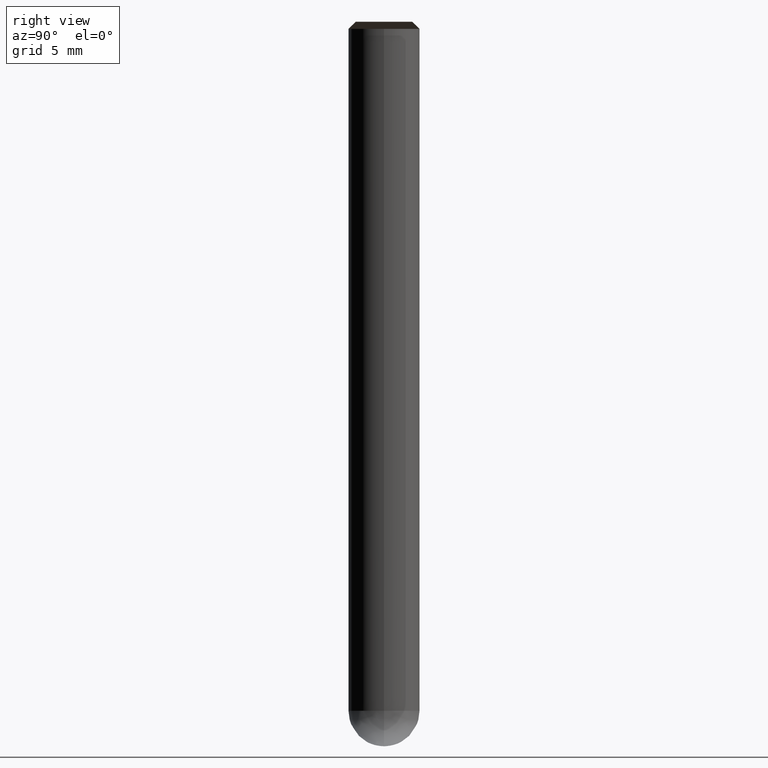
[diagram: clean part render]
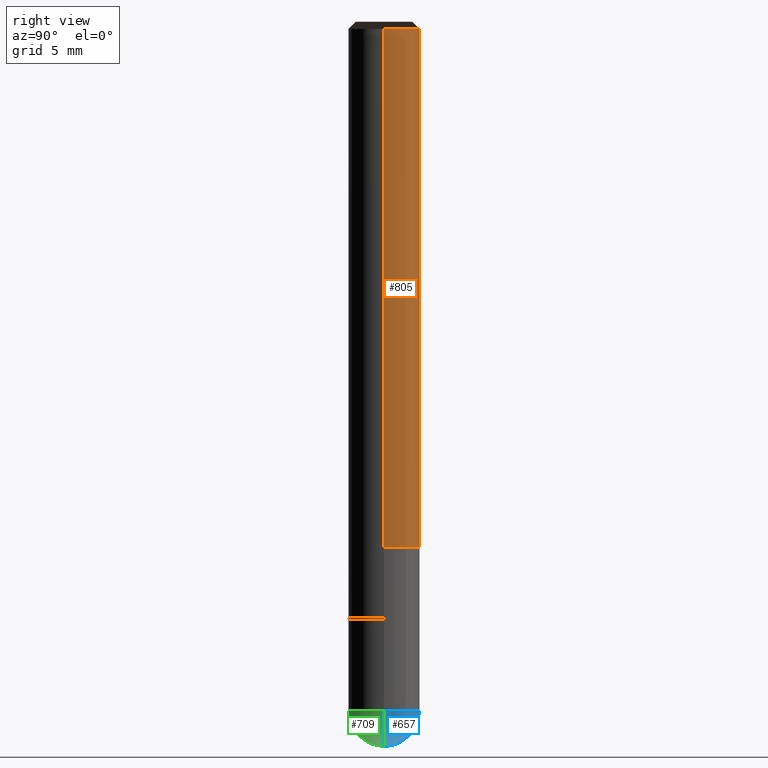
[diagram: same view with three faces highlighted in distinct colors, each labeled with its STEP entity id]
A machine part, right view with three faces highlighted in distinct colors.
Their STEP definitions:

[orange] entity #805 — the highlighted face is a freeform B-spline surface patch.
#610=CARTESIAN_POINT('',(2.5,0.0,0.0));
#611=CARTESIAN_POINT('',(2.5,2.5,0.0));
#612=CARTESIAN_POINT('',(0.0,2.5,0.0));
#613=CARTESIAN_POINT('',(-2.5,2.5,0.0));
#614=CARTESIAN_POINT('',(-2.5,0.0,0.0));
#615=CARTESIAN_POINT('',(2.5,0.0,36.5));
#616=CARTESIAN_POINT('',(2.5,2.5,36.5));
#617=CARTESIAN_POINT('',(0.0,2.5,36.5));
#618=CARTESIAN_POINT('',(-2.5,2.5,36.5));
#619=CARTESIAN_POINT('',(-2.5,0.0,36.5));
#786=(
BOUNDED_SURFACE()
B_SPLINE_SURFACE(1,2,(
(#610,#611,#612,#613,#614),
(#615,#616,#617,#618,#619)
), .UNSPECIFIED.,.F.,.F.,.F.)
B_SPLINE_SURFACE_WITH_KNOTS((2,2),(3,2,3),(
0.0,1.0),(
0.0,0.5,1.0), .UNSPECIFIED.)
GEOMETRIC_REPRESENTATION_ITEM()
RATIONAL_B_SPLINE_SURFACE(((1.0,0.707106781187,1.0,0.707106781187,1.0),
(1.0,0.707106781187,1.0,0.707106781187,1.0)
))
REPRESENTATION_ITEM('')
SURFACE()
);
#787=(
BOUNDED_CURVE()
B_SPLINE_CURVE(2,(#614,#613,#612,#611,#610),.UNSPECIFIED.,.F.,.F.)
B_SPLINE_CURVE_WITH_KNOTS((3,2,3),
(0.0,0.5,1.0),.UNSPECIFIED.)
CURVE()
GEOMETRIC_REPRESENTATION_ITEM()
RATIONAL_B_SPLINE_CURVE((1.0,0.707106781187,1.0,0.707106781187,1.0))
REPRESENTATION_ITEM('')
);
#788=(
BOUNDED_CURVE()
B_SPLINE_CURVE(1,(#610,#615),.UNSPECIFIED.,.F.,.F.)
B_SPLINE_CURVE_WITH_KNOTS((2,2),
(0.0,1.0),.UNSPECIFIED.)
CURVE()
GEOMETRIC_REPRESENTATION_ITEM()
RATIONAL_B_SPLINE_CURVE((1.0,1.0))
REPRESENTATION_ITEM('')
);
#789=(
BOUNDED_CURVE()
B_SPLINE_CURVE(2,(#615,#616,#617,#618,#619),.UNSPECIFIED.,.F.,.F.)
B_SPLINE_CURVE_WITH_KNOTS((3,2,3),
(0.0,0.5,1.0),.UNSPECIFIED.)
CURVE()
GEOMETRIC_REPRESENTATION_ITEM()
RATIONAL_B_SPLINE_CURVE((1.0,0.707106781187,1.0,0.707106781187,1.0))
REPRESENTATION_ITEM('')
);
#790=(
BOUNDED_CURVE()
B_SPLINE_CURVE(1,(#619,#614),.UNSPECIFIED.,.F.,.F.)
B_SPLINE_CURVE_WITH_KNOTS((2,2),
(0.0,1.0),.UNSPECIFIED.)
CURVE()
GEOMETRIC_REPRESENTATION_ITEM()
RATIONAL_B_SPLINE_CURVE((1.0,1.0))
REPRESENTATION_ITEM('')
);
#791=VERTEX_POINT('',#610);
#792=VERTEX_POINT('',#614);
#793=VERTEX_POINT('',#615);
#794=VERTEX_POINT('',#619);
#795=EDGE_CURVE('',#792,#791,#787,.T.);
#796=EDGE_CURVE('',#791,#793,#788,.T.);
#797=EDGE_CURVE('',#793,#794,#789,.T.);
#798=EDGE_CURVE('',#794,#792,#790,.T.);
#799=ORIENTED_EDGE('',*,*,#795,.T.);
#800=ORIENTED_EDGE('',*,*,#796,.T.);
#801=ORIENTED_EDGE('',*,*,#797,.T.);
#802=ORIENTED_EDGE('',*,*,#798,.T.);
#803=EDGE_LOOP('',(#799,#800,#801,#802));
#804=FACE_OUTER_BOUND('',#803,.T.);
#805=ADVANCED_FACE('',(#804),#786,.T.);

[blue] entity #657 — the highlighted face is a freeform B-spline surface patch.
#584=CARTESIAN_POINT('',(0.0,0.0,-14.0));
#585=CARTESIAN_POINT('',(2.5,0.0,-14.0));
#586=CARTESIAN_POINT('',(2.5,2.5,-14.0));
#587=CARTESIAN_POINT('',(0.0,2.5,-14.0));
#588=CARTESIAN_POINT('',(-2.5,2.5,-14.0));
#589=CARTESIAN_POINT('',(-2.5,0.0,-14.0));
#590=CARTESIAN_POINT('',(2.5,0.0,-11.5));
#591=CARTESIAN_POINT('',(2.5,2.5,-11.5));
#592=CARTESIAN_POINT('',(0.0,2.5,-11.5));
#593=CARTESIAN_POINT('',(-2.5,2.5,-11.5));
#594=CARTESIAN_POINT('',(-2.5,0.0,-11.5));
#642=(
BOUNDED_SURFACE()
B_SPLINE_SURFACE(2,2,(
(#584,#584,#584,#584,#584),
(#585,#586,#587,#588,#589),
(#590,#591,#592,#593,#594)
), .UNSPECIFIED.,.F.,.F.,.F.)
B_SPLINE_SURFACE_WITH_KNOTS((3,3),(3,2,3),(
0.0,1.0),(
0.0,0.5,1.0), .UNSPECIFIED.)
GEOMETRIC_REPRESENTATION_ITEM()
RATIONAL_B_SPLINE_SURFACE(((1.0,0.707106781187,1.0,0.707106781187,1.0),
(0.707106781187,0.5,0.707106781187,0.5,0.707106781187),
(1.0,0.707106781187,1.0,0.707106781187,1.0)
))
REPRESENTATION_ITEM('')
SURFACE()
);
#643=(
BOUNDED_CURVE()
B_SPLINE_CURVE(2,(#594,#589,#584),.UNSPECIFIED.,.F.,.F.)
B_SPLINE_CURVE_WITH_KNOTS((3,3),
(0.0,1.0),.UNSPECIFIED.)
CURVE()
GEOMETRIC_REPRESENTATION_ITEM()
RATIONAL_B_SPLINE_CURVE((1.0,0.707106781187,1.0))
REPRESENTATION_ITEM('')
);
#644=(
BOUNDED_CURVE()
B_SPLINE_CURVE(2,(#584,#585,#590),.UNSPECIFIED.,.F.,.F.)
B_SPLINE_CURVE_WITH_KNOTS((3,3),
(0.0,1.0),.UNSPECIFIED.)
CURVE()
GEOMETRIC_REPRESENTATION_ITEM()
RATIONAL_B_SPLINE_CURVE((1.0,0.707106781187,1.0))
REPRESENTATION_ITEM('')
);
#645=(
BOUNDED_CURVE()
B_SPLINE_CURVE(2,(#590,#591,#592,#593,#594),.UNSPECIFIED.,.F.,.F.)
B_SPLINE_CURVE_WITH_KNOTS((3,2,3),
(0.0,0.5,1.0),.UNSPECIFIED.)
CURVE()
GEOMETRIC_REPRESENTATION_ITEM()
RATIONAL_B_SPLINE_CURVE((1.0,0.707106781187,1.0,0.707106781187,1.0))
REPRESENTATION_ITEM('')
);
#646=VERTEX_POINT('',#584);
#647=VERTEX_POINT('',#590);
#648=VERTEX_POINT('',#594);
#649=EDGE_CURVE('',#648,#646,#643,.T.);
#650=EDGE_CURVE('',#646,#647,#644,.T.);
#651=EDGE_CURVE('',#647,#648,#645,.T.);
#652=ORIENTED_EDGE('',*,*,#649,.T.);
#653=ORIENTED_EDGE('',*,*,#650,.T.);
#654=ORIENTED_EDGE('',*,*,#651,.T.);
#655=EDGE_LOOP('',(#652,#653,#654));
#656=FACE_OUTER_BOUND('',#655,.T.);
#657=ADVANCED_FACE('',(#656),#642,.T.);

[green] entity #709 — the highlighted face is a freeform B-spline surface patch.
#584=CARTESIAN_POINT('',(0.0,0.0,-14.0));
#585=CARTESIAN_POINT('',(2.5,0.0,-14.0));
#589=CARTESIAN_POINT('',(-2.5,0.0,-14.0));
#590=CARTESIAN_POINT('',(2.5,0.0,-11.5));
#594=CARTESIAN_POINT('',(-2.5,0.0,-11.5));
#601=CARTESIAN_POINT('',(-2.5,-2.5,-14.0));
#602=CARTESIAN_POINT('',(0.0,-2.5,-14.0));
#603=CARTESIAN_POINT('',(2.5,-2.5,-14.0));
#604=CARTESIAN_POINT('',(-2.5,-2.5,-11.5));
#605=CARTESIAN_POINT('',(0.0,-2.5,-11.5));
#606=CARTESIAN_POINT('',(2.5,-2.5,-11.5));
#694=(
BOUNDED_SURFACE()
B_SPLINE_SURFACE(2,2,(
(#584,#584,#584,#584,#584),
(#589,#601,#602,#603,#585),
(#594,#604,#605,#606,#590)
), .UNSPECIFIED.,.F.,.F.,.F.)
B_SPLINE_SURFACE_WITH_KNOTS((3,3),(3,2,3),(
0.0,1.0),(
0.0,0.5,1.0), .UNSPECIFIED.)
GEOMETRIC_REPRESENTATION_ITEM()
RATIONAL_B_SPLINE_SURFACE(((1.0,0.707106781187,1.0,0.707106781187,1.0),
(0.707106781187,0.5,0.707106781187,0.5,0.707106781187),
(1.0,0.707106781187,1.0,0.707106781187,1.0)
))
REPRESENTATION_ITEM('')
SURFACE()
);
#695=(
BOUNDED_CURVE()
B_SPLINE_CURVE(2,(#590,#585,#584),.UNSPECIFIED.,.F.,.F.)
B_SPLINE_CURVE_WITH_KNOTS((3,3),
(0.0,1.0),.UNSPECIFIED.)
CURVE()
GEOMETRIC_REPRESENTATION_ITEM()
RATIONAL_B_SPLINE_CURVE((1.0,0.707106781187,1.0))
REPRESENTATION_ITEM('')
);
#696=(
BOUNDED_CURVE()
B_SPLINE_CURVE(2,(#584,#589,#594),.UNSPECIFIED.,.F.,.F.)
B_SPLINE_CURVE_WITH_KNOTS((3,3),
(0.0,1.0),.UNSPECIFIED.)
CURVE()
GEOMETRIC_REPRESENTATION_ITEM()
RATIONAL_B_SPLINE_CURVE((1.0,0.707106781187,1.0))
REPRESENTATION_ITEM('')
);
#697=(
BOUNDED_CURVE()
B_SPLINE_CURVE(2,(#594,#604,#605,#606,#590),.UNSPECIFIED.,.F.,.F.)
B_SPLINE_CURVE_WITH_KNOTS((3,2,3),
(0.0,0.5,1.0),.UNSPECIFIED.)
CURVE()
GEOMETRIC_REPRESENTATION_ITEM()
RATIONAL_B_SPLINE_CURVE((1.0,0.707106781187,1.0,0.707106781187,1.0))
REPRESENTATION_ITEM('')
);
#698=VERTEX_POINT('',#584);
#699=VERTEX_POINT('',#590);
#700=VERTEX_POINT('',#594);
#701=EDGE_CURVE('',#699,#698,#695,.T.);
#702=EDGE_CURVE('',#698,#700,#696,.T.);
#703=EDGE_CURVE('',#700,#699,#697,.T.);
#704=ORIENTED_EDGE('',*,*,#701,.T.);
#705=ORIENTED_EDGE('',*,*,#702,.T.);
#706=ORIENTED_EDGE('',*,*,#703,.T.);
#707=EDGE_LOOP('',(#704,#705,#706));
#708=FACE_OUTER_BOUND('',#707,.T.);
#709=ADVANCED_FACE('',(#708),#694,.T.);